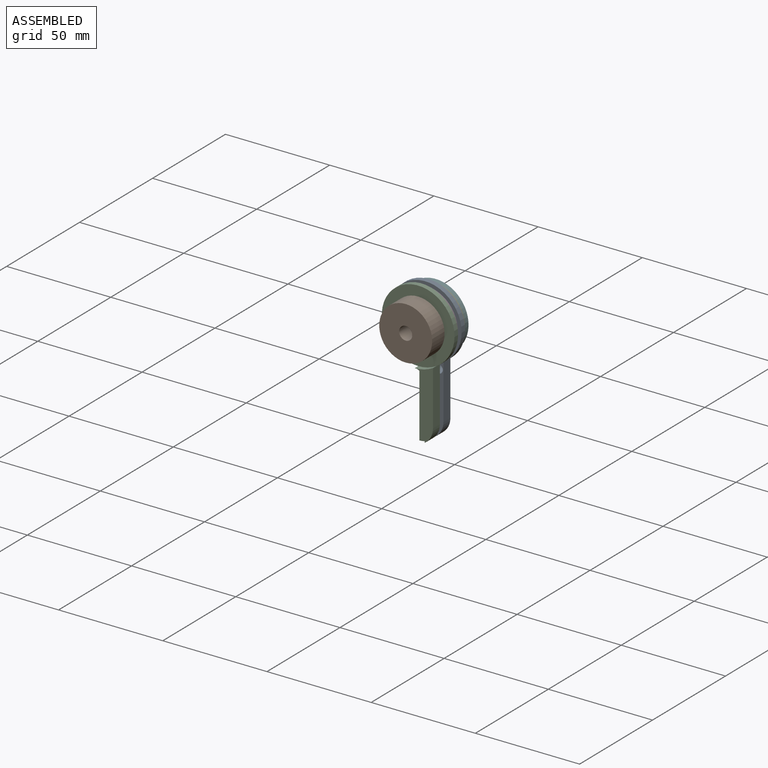
[diagram: assembled view]
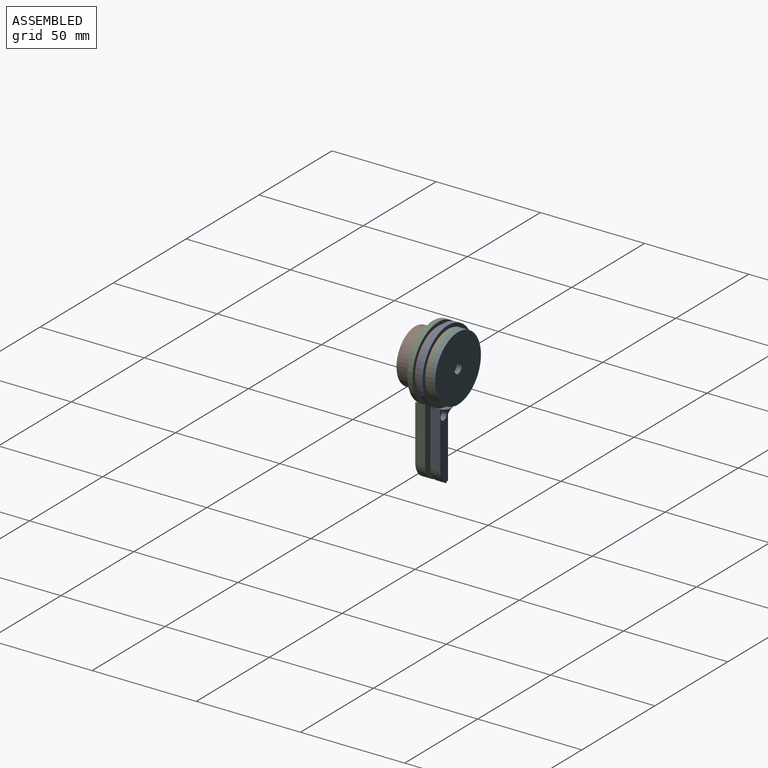
[diagram: assembled view, second angle]
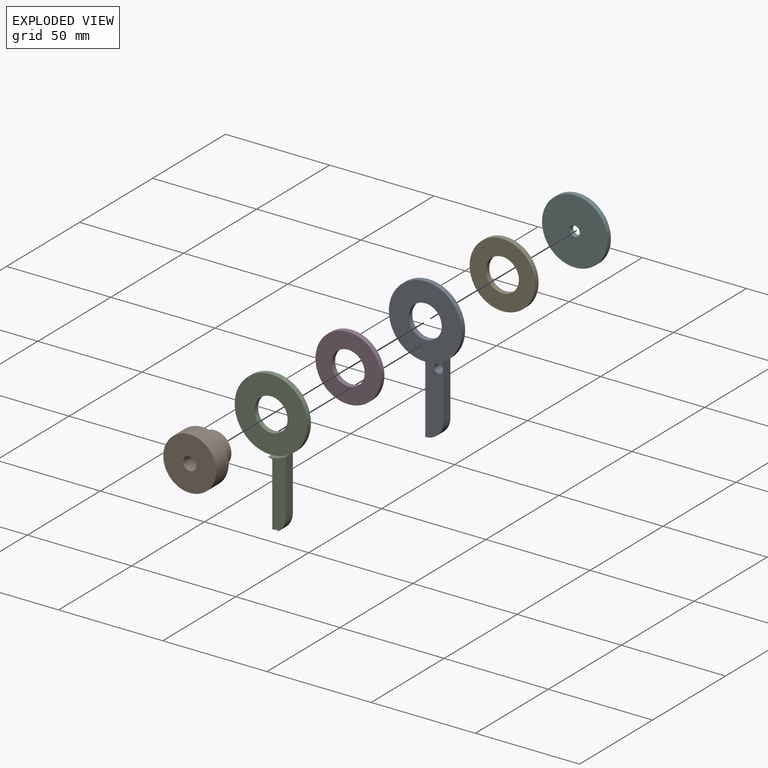
[diagram: exploded view]
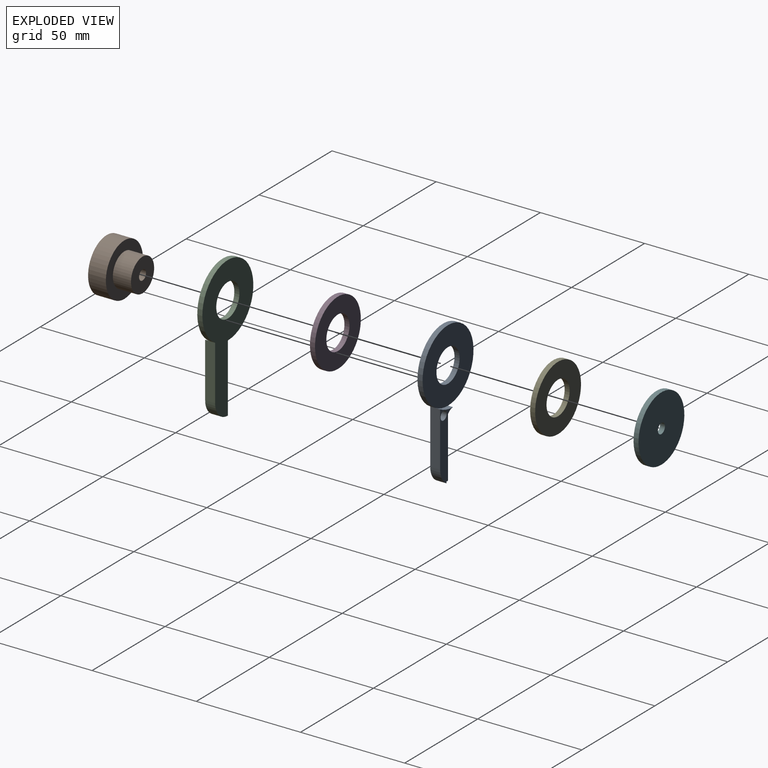
[diagram: exploded view, second angle]
ASSEMBLY  parts=6 mates=5
PART A: 13 faces, bbox 34.9x67.5x4.8 mm
  f0: cylinder r=8.74mm len=8.74mm, axis (0,0,-1), area 54.7mm2, adj f3,f4,f5,f6,f9,f11
  f1: cylinder r=17.46mm len=34.93mm, axis (0,0,-1), area 245.2mm2, adj f3,f4,f6,f8
  f2: cylinder r=7.94mm len=15.88mm, axis (0,0,-1), area 121.6mm2, adj f6,f8
  f3: plane 26.18x4.76mm, normal (-1,0,0), area 124.7mm2, adj f0,f1,f5,f6,f7
  f4: plane 32.58x4.76mm, normal (1,0,0), area 79.5mm2, adj f0,f1,f5,f6,f7,f9,f10
  f5: plane 33.75x8.74mm, normal (0,0,1), area 125.6mm2, adj f0,f3,f4,f7,f10,f11,f12
  f6: plane 67.5x34.93mm, normal (0,0,-1), area 1021.5mm2, adj f0,f1,f2,f3,f4,f12
  f7: cylinder r=17.46mm len=8.74mm, axis (0,0,1), area 21.3mm2, adj f3,f4,f5,f8
  f8: plane 34.93x34.93mm, normal (0,0,1), area 760.1mm2, adj f1,f2,f7
  f9: plane 32.56x4.37mm, normal (0,0,1), area 135.8mm2, adj f0,f4,f10,f11
  f10: cylinder r=4.76mm len=4.75mm, axis (0,0,1), area 16.5mm2, adj f4,f5,f9,f11
  f11: plane 26.64x2.32mm, normal (1,0,0), area 61.9mm2, adj f0,f5,f9,f10
  f12: cylinder r=2.07mm len=4.76mm, axis (0,0,1), area 61.9mm2, adj f5,f6
PART B: 8 faces, bbox 25.4x17.2x25.4 mm
  f0: cylinder r=12.7mm len=25.4mm, axis (0,1,0), area 681mm2, adj f1,f2
  f1: plane 25.4x25.4mm, normal (0,-1,0), area 308.8mm2, adj f0,f3
  f2: plane 25.4x25.4mm, normal (0,1,0), area 475mm2, adj f0,f5
  f3: cylinder r=7.94mm len=15.88mm, axis (0,1,0), area 434.5mm2, adj f1,f4
  f4: plane 15.88x15.88mm, normal (0,-1,0), area 179.8mm2, adj f3,f7
  f5: cylinder r=3.17mm len=7.62mm, axis (0,1,0), area 152mm2, adj f2,f6
  f6: plane 6.35x6.35mm, normal (0,1,0), area 13.6mm2, adj f5,f7
  f7: cylinder r=2.4mm len=9.63mm, axis (0,1,0), area 145.2mm2, adj f4,f6
PART C: 12 faces, bbox 34.9x4.8x67.5 mm
  f0: plane 32.58x1.6mm, normal (-1,0,0), area 52.1mm2, adj f1,f3,f6,f9
  f1: cylinder r=17.46mm len=34.93mm, axis (0,1,0), area 245.2mm2, adj f0,f4,f6,f8,f11
  f2: cylinder r=7.94mm len=15.88mm, axis (0,1,0), area 121.6mm2, adj f6,f8
  f3: cylinder r=8.74mm len=8.74mm, axis (0,1,0), area 49.4mm2, adj f0,f4,f5,f6,f9,f10
  f4: plane 26.18x4.76mm, normal (1,0,0), area 124.7mm2, adj f1,f3,f5,f6,f7
  f5: plane 33.51x8.74mm, normal (0,-1,0), area 126.8mm2, adj f3,f4,f7,f10,f11
  f6: plane 67.5x34.93mm, normal (0,1,0), area 1034.9mm2, adj f0,f1,f2,f3,f4
  f7: cylinder r=17.46mm len=8.74mm, axis (0,-1,0), area 21.3mm2, adj f4,f5,f8,f11
  f8: plane 34.93x34.93mm, normal (0,-1,0), area 760.1mm2, adj f1,f2,f7
  f9: plane 32.58x4.76mm, normal (0,-1,0), area 148.1mm2, adj f0,f3,f10,f11
  f10: plane 26.4x3.16mm, normal (-1,0,0), area 83.5mm2, adj f3,f5,f9,f11
  f11: cylinder r=4.76mm len=4.76mm, axis (0,-1,0), area 23.7mm2, adj f1,f5,f7,f9,f10
PART D: 4 faces, bbox 31.4x2.4x31.4 mm
  f0: cylinder r=7.94mm len=15.88mm, axis (0,1,0), area 120.3mm2, adj f2,f3
  f1: cylinder r=15.71mm len=31.42mm, axis (0,1,0), area 238.2mm2, adj f2,f3
  f2: plane 31.42x31.42mm, normal (0,-1,0), area 577.4mm2, adj f0,f1
  f3: plane 31.42x31.42mm, normal (0,1,0), area 577.4mm2, adj f0,f1
PART E: same geometry as D
PART F: 4 faces, bbox 31.4x2.4x31.4 mm
  f0: cylinder r=2.41mm len=4.83mm, axis (0,1,0), area 36.2mm2, adj f2,f3
  f1: cylinder r=15.71mm len=31.42mm, axis (0,1,0), area 235.7mm2, adj f2,f3
  f2: plane 31.42x31.42mm, normal (0,-1,0), area 757.1mm2, adj f0,f1
  f3: plane 31.42x31.42mm, normal (0,1,0), area 757.1mm2, adj f0,f1
PLACE A rot(axis=(0,-0.71,-0.71),180deg) t=(-22.77,12.39,38.38)mm
PLACE B rot(axis=(0,0,-1),180deg) t=(-22.77,-1,38.38)mm
PLACE C t=(-22.77,9.97,38.38)mm
PLACE D t=(-22.77,12.39,38.38)mm
PLACE E t=(-22.77,17.24,38.38)mm
PLACE F t=(-22.77,19.62,38.38)mm
MATE fastened E.f0 <-> A.f2  axis (0,-1,0) through (-22.77,14.82,38.38)mm
MATE fastened F.f0 <-> E.f0  axis (0,-1,0) through (-22.77,17.24,38.38)mm
MATE fastened D.f1 <-> C.f2  axis (0,-1,0) through (-22.77,9.97,38.38)mm
MATE fastened A.f2 <-> D.f0  axis (0,-1,0) through (-22.77,12.39,38.38)mm
MATE fastened B.f0 <-> C.f2  axis (0,1,0) through (-22.77,7.53,38.38)mm
